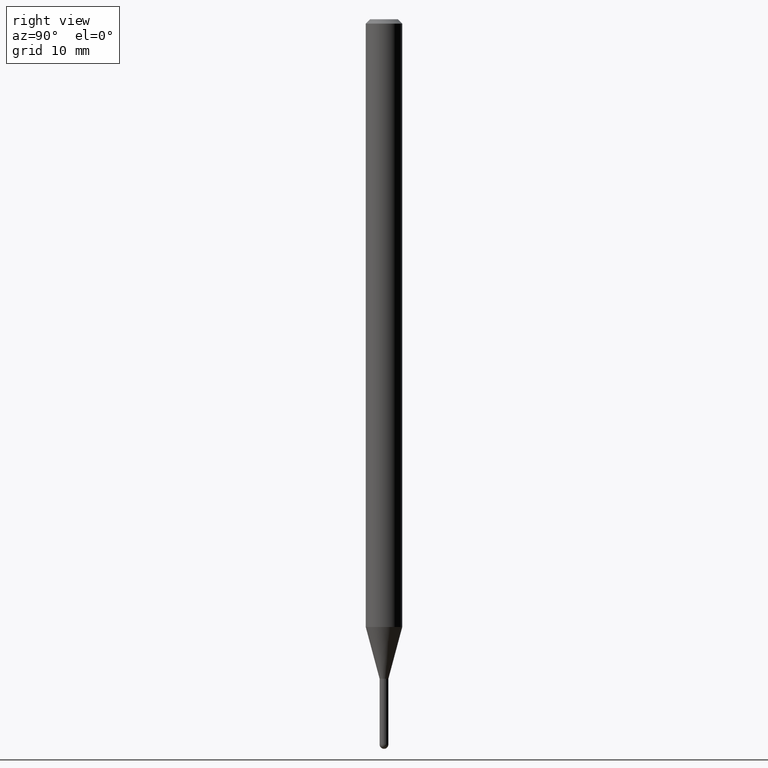
[diagram: clean part render]
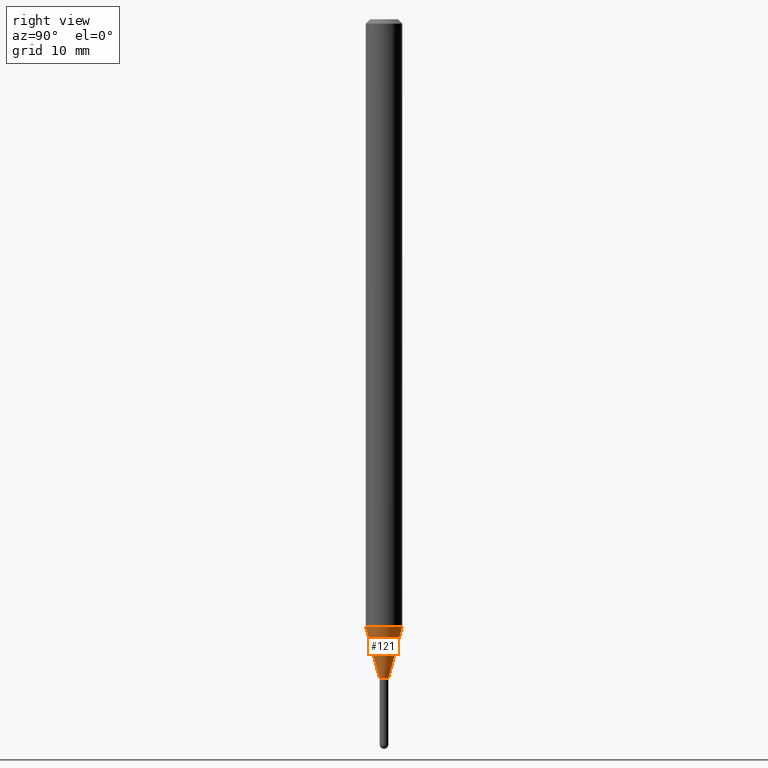
[diagram: same view with one face highlighted and labeled with its STEP entity id]
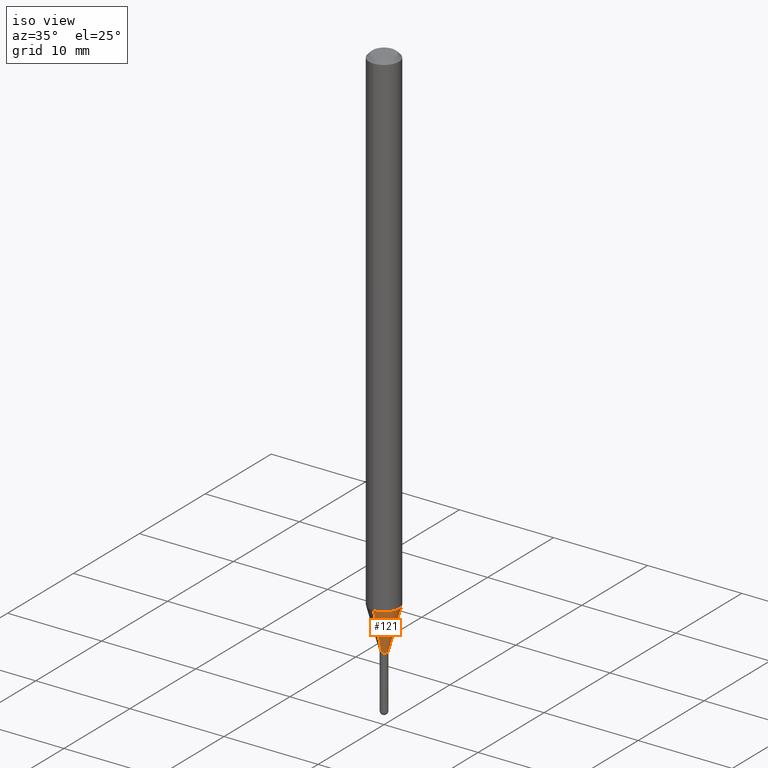
[diagram: same view with one face highlighted and labeled with its STEP entity id]
A machine part, right view. The second image highlights one B-rep face of the part: STEP entity #121.
A second angle (iso view) of the same face is appended — the face is thin or edge-on in the first view.
In plain terms, the highlighted conical surface has half-angle 15 deg.
Its self-contained STEP definition (entity closure, byte-faithful):
#4 = CARTESIAN_POINT ( 'NONE',  ( -4.364351673553408372E-16, -0.06250000000000728584, -2.082727586640484851 ) ) ;
#25 = VECTOR ( 'NONE', #337, 39.37007874015748854 ) ;
#43 = CIRCLE ( 'NONE', #421, 0.06250000000000000000 ) ;
#45 = EDGE_CURVE ( 'NONE', #422, #298, #300, .T. ) ;
#54 = DIRECTION ( 'NONE',  ( -2.445532086721361648E-29, 3.491390717513566819E-15, 1.000000000000000000 ) ) ;
#55 = DIRECTION ( 'NONE',  ( -6.982962677686265922E-15, -1.000000000000000000, 4.370956789862821150E-15 ) ) ;
#70 = VECTOR ( 'NONE', #265, 39.37007874015748143 ) ;
#103 = ORIENTED_EDGE ( 'NONE', *, *, #45, .T. ) ;
#108 = LINE ( 'NONE', #490, #70 ) ;
#116 = CARTESIAN_POINT ( 'NONE',  ( -1.047444401652401091E-16, -0.01500000000000809020, -2.260000000000000231 ) ) ;
#121 = ADVANCED_FACE ( 'NONE', ( #407 ), #454, .T. ) ;
#130 = AXIS2_PLACEMENT_3D ( 'NONE', #359, #470, #404 ) ;
#166 = DIRECTION ( 'NONE',  ( -6.982962677686265922E-15, -1.000000000000000000, 0.000000000000000000 ) ) ;
#172 = CARTESIAN_POINT ( 'NONE',  ( 5.526902515990277431E-29, -7.890543021580662754E-15, -2.260000000000000231 ) ) ;
#174 = LINE ( 'NONE', #453, #25 ) ;
#179 = EDGE_CURVE ( 'NONE', #422, #503, #174, .T. ) ;
#183 = ORIENTED_EDGE ( 'NONE', *, *, #184, .T. ) ;
#184 = EDGE_CURVE ( 'NONE', #298, #193, #108, .T. ) ;
#193 = VERTEX_POINT ( 'NONE', #501 ) ;
#196 = CARTESIAN_POINT ( 'NONE',  ( 5.093377141029050254E-29, -7.271615763106022658E-15, -2.082727586640484851 ) ) ;
#207 = CARTESIAN_POINT ( 'NONE',  ( 2.753353101070928077E-16, 0.01499999999999231289, -2.260000000000000231 ) ) ;
#234 = AXIS2_PLACEMENT_3D ( 'NONE', #172, #54, #166 ) ;
#265 = DIRECTION ( 'NONE',  ( 1.839019923739649619E-15, 0.2588190451025318972, 0.9659258262890653146 ) ) ;
#298 = VERTEX_POINT ( 'NONE', #207 ) ;
#300 = CIRCLE ( 'NONE', #130, 0.01500000000000020067 ) ;
#301 = ORIENTED_EDGE ( 'NONE', *, *, #499, .F. ) ;
#304 = ORIENTED_EDGE ( 'NONE', *, *, #179, .F. ) ;
#337 = DIRECTION ( 'NONE',  ( -1.807323732225378654E-15, -0.2588190451025251249, 0.9659258262890670910 ) ) ;
#359 = CARTESIAN_POINT ( 'NONE',  ( 5.526902515990277431E-29, -7.890543021580662754E-15, -2.260000000000000231 ) ) ;
#369 = EDGE_LOOP ( 'NONE', ( #103, #183, #301, #304 ) ) ;
#404 = DIRECTION ( 'NONE',  ( -6.982962677686265922E-15, -1.000000000000000000, 0.000000000000000000 ) ) ;
#407 = FACE_OUTER_BOUND ( 'NONE', #369, .T. ) ;
#421 = AXIS2_PLACEMENT_3D ( 'NONE', #196, #482, #55 ) ;
#422 = VERTEX_POINT ( 'NONE', #116 ) ;
#453 = CARTESIAN_POINT ( 'NONE',  ( -1.047444401652401091E-16, -0.01500000000000809020, -2.260000000000000231 ) ) ;
#454 = CONICAL_SURFACE ( 'NONE', #234, 0.01500000000000020067, 0.2617993877991574569 ) ;
#470 = DIRECTION ( 'NONE',  ( -2.445532086721361648E-29, 3.491390717513566819E-15, 1.000000000000000000 ) ) ;
#482 = DIRECTION ( 'NONE',  ( -2.445532086721361648E-29, 3.491390717513566819E-15, 1.000000000000000000 ) ) ;
#490 = CARTESIAN_POINT ( 'NONE',  ( 1.065814103640717110E-16, 0.01499999999999231115, -2.260000000000000231 ) ) ;
#499 = EDGE_CURVE ( 'NONE', #503, #193, #43, .T. ) ;
#501 = CARTESIAN_POINT ( 'NONE',  ( 4.440892098501133005E-16, 0.06249999999999271416, -2.082727586640485296 ) ) ;
#503 = VERTEX_POINT ( 'NONE', #4 ) ;